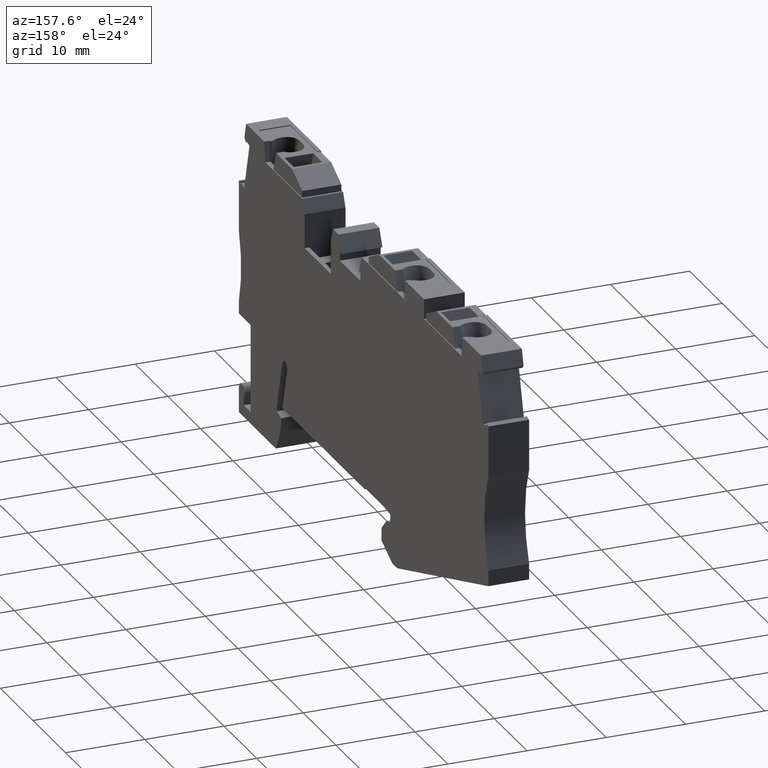
[diagram: clean part render]
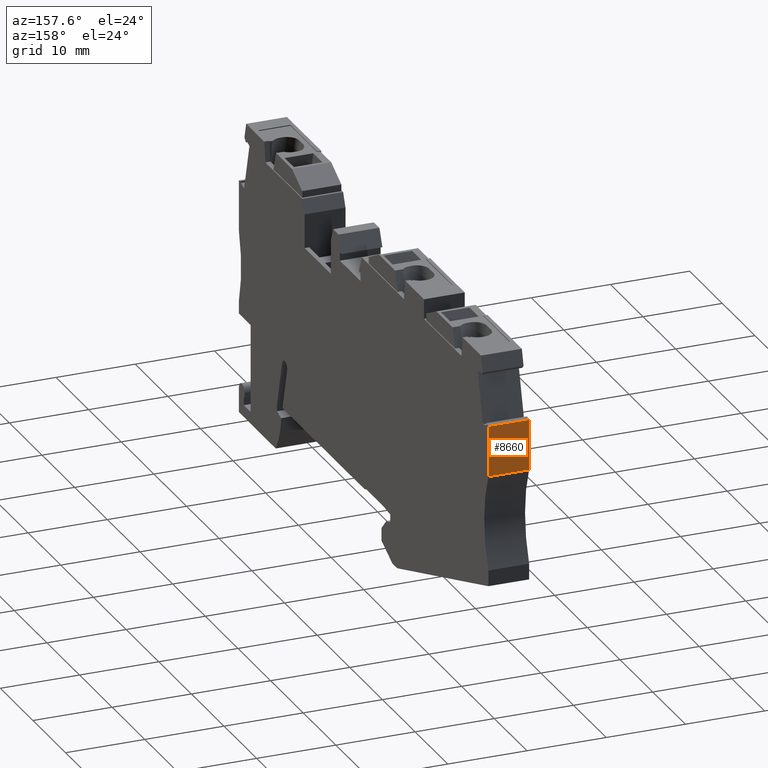
[diagram: same view with one face highlighted and labeled with its STEP entity id]
A machine part, auxiliary view. The second image highlights one B-rep face of the part: STEP entity #8660.
In plain terms, the highlighted planar face has unit normal (-0, -1, 0).
Its self-contained STEP definition (entity closure, byte-faithful):
#2270=CARTESIAN_POINT('',(80.7511501013421,27.0750632908093,
4.90357402389605E-11));
#2280=VERTEX_POINT('',#2270);
#2310=CARTESIAN_POINT('',(80.7511501013421,27.0750632908094,
-2.88657986402541E-14));
#2320=DIRECTION('',(0.,0.,1.));
#2330=VECTOR('',#2320,1.);
#2340=LINE('',#2310,#2330);
#2350=CARTESIAN_POINT('',(80.7511501013421,27.0750632908093,
-5.15000000005752));
#2360=VERTEX_POINT('',#2350);
#2370=EDGE_CURVE('',#2360,#2280,#2340,.T.);
#7890=CARTESIAN_POINT('',(79.9711959708171,33.427279927734,
4.8666351412657E-11));
#7900=VERTEX_POINT('',#7890);
#7930=CARTESIAN_POINT('',(83.812189199734,2.14490044393051,
-7.08711528758495E-11));
#7940=DIRECTION('',(-0.121869343405148,0.992546151641323,
-8.59348256359817E-17));
#7950=VECTOR('',#7940,1.);
#7960=LINE('',#7930,#7950);
#7970=EDGE_CURVE('',#2280,#7900,#7960,.T.);
#8430=CARTESIAN_POINT('',(80.2260416755018,31.3517282231005,
-3.10862446895044E-14));
#8440=DIRECTION('',(-0.992546151641322,-0.121869343405148,-0.));
#8450=DIRECTION('',(-0.121869343405148,0.992546151641322,0.));
#8460=AXIS2_PLACEMENT_3D('',#8430,#8440,#8450);
#8470=PLANE('',#8460);
#8480=CARTESIAN_POINT('',(79.9711959708172,33.4272799277341,
-7.08550668027514E-11));
#8490=DIRECTION('',(-1.12577348889874E-16,8.16781307540979E-17,1.));
#8500=VECTOR('',#8490,1.);
#8510=LINE('',#8480,#8500);
#8520=CARTESIAN_POINT('',(79.9711959708171,33.427279927734,
-5.15000000005385));
#8530=VERTEX_POINT('',#8520);
#8540=EDGE_CURVE('',#8530,#7900,#8510,.T.);
#8550=ORIENTED_EDGE('',*,*,#8540,.T.);
#8560=CARTESIAN_POINT('',(83.812189199734,2.14490044393051,
-5.15000000007087));
#8570=DIRECTION('',(-0.121869343405148,0.992546151641323,
-8.59348256359817E-17));
#8580=VECTOR('',#8570,1.);
#8590=LINE('',#8560,#8580);
#8600=EDGE_CURVE('',#2360,#8530,#8590,.T.);
#8610=ORIENTED_EDGE('',*,*,#8600,.T.);
#8620=ORIENTED_EDGE('',*,*,#2370,.F.);
#8630=ORIENTED_EDGE('',*,*,#7970,.F.);
#8640=EDGE_LOOP('',(#8630,#8620,#8610,#8550));
#8650=FACE_OUTER_BOUND('',#8640,.T.);
#8660=ADVANCED_FACE('',(#8650),#8470,.F.);